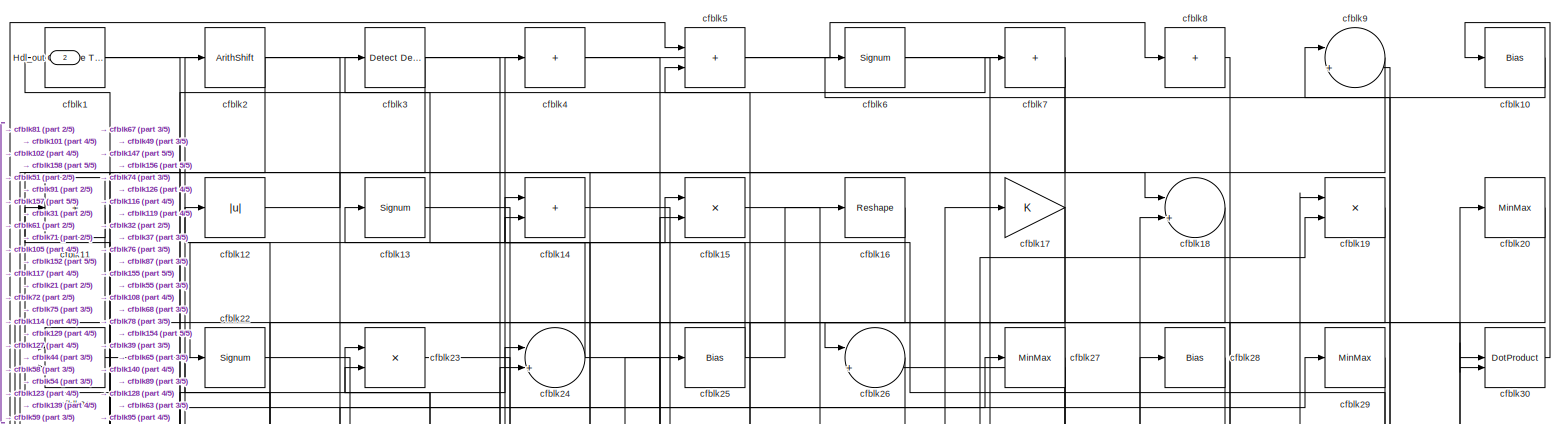
[diagram: root canvas - part 1/5, full width, top band]
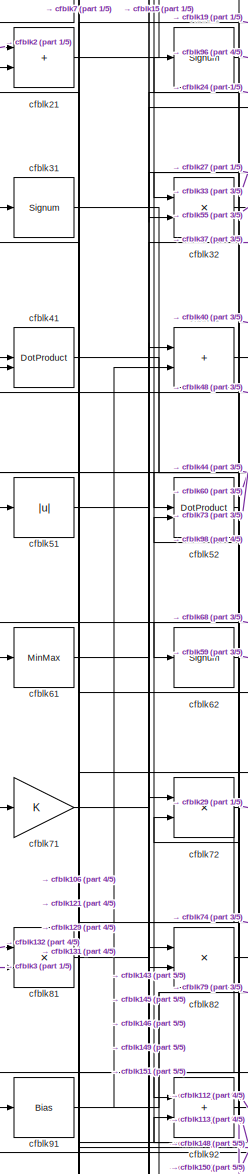
[diagram: root canvas - part 2/5, middle left region]
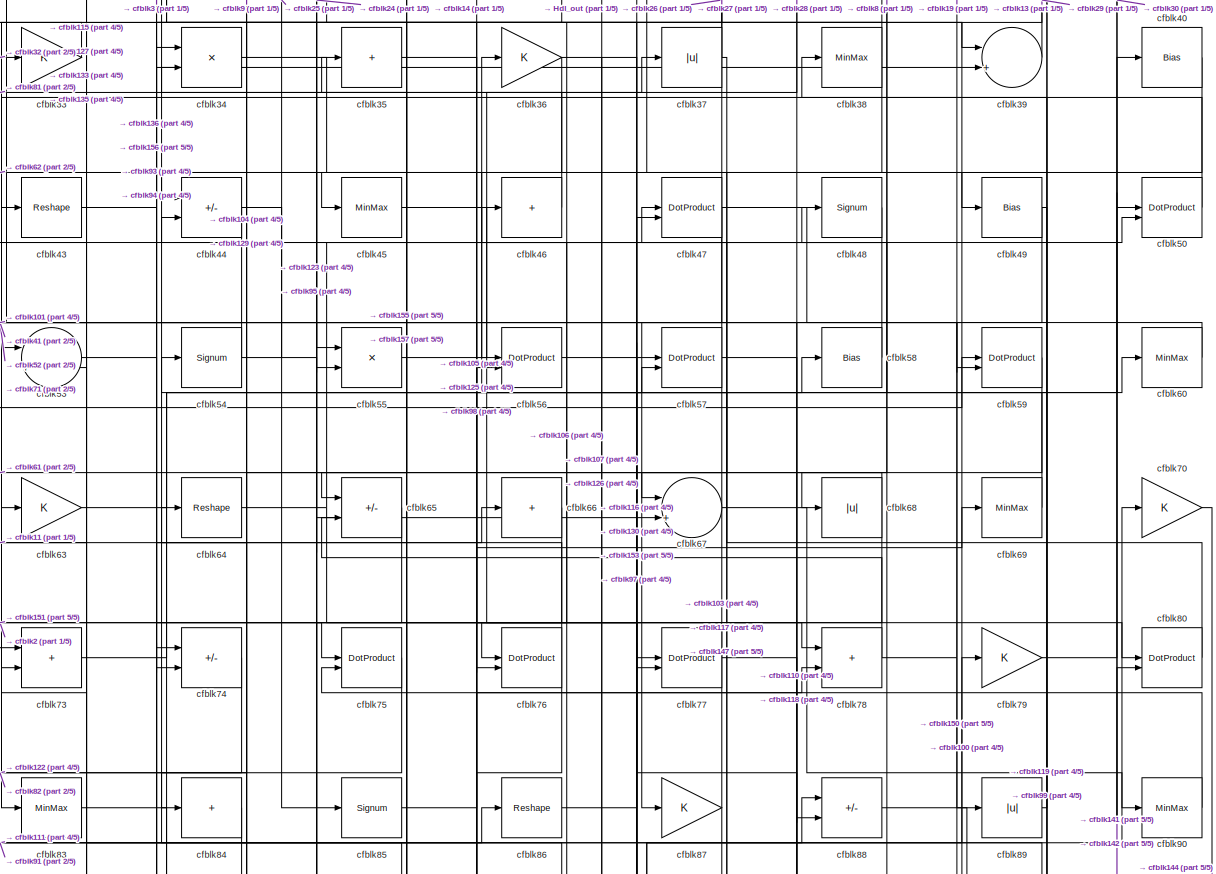
[diagram: root canvas - part 3/5, full width, middle band]
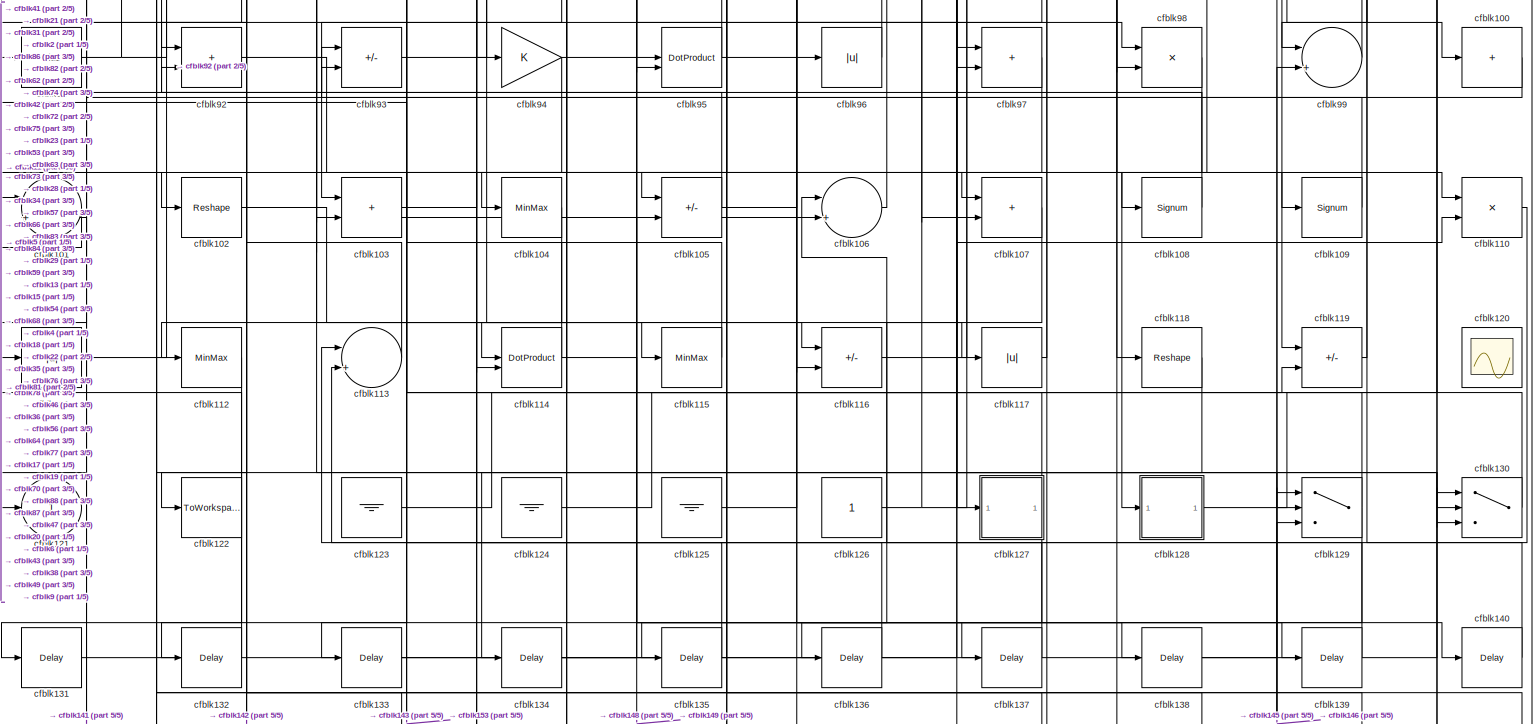
[diagram: root canvas - part 4/5, full width, bottom band]
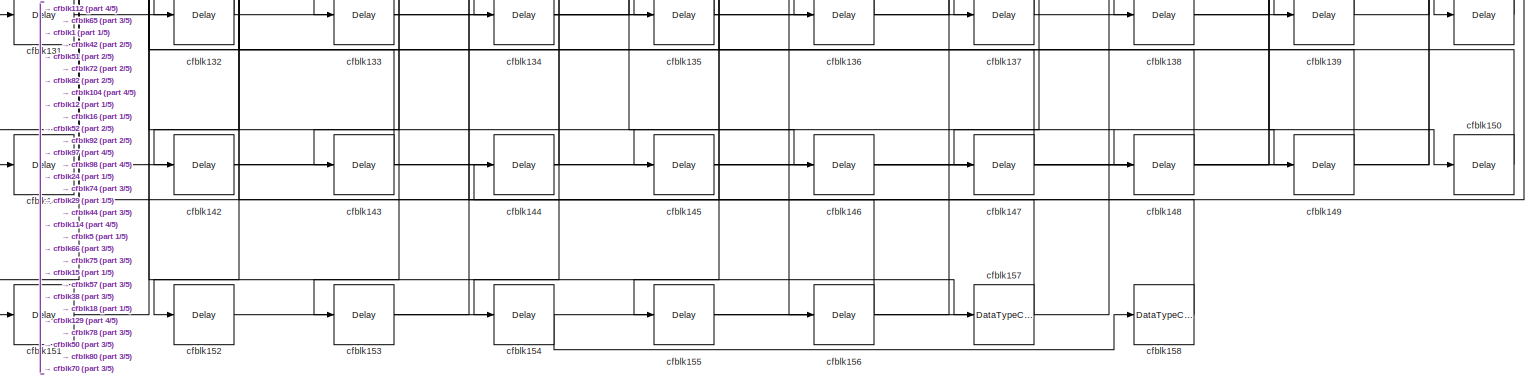
[diagram: root canvas - part 5/5, full width, bottom band]
MODEL slx_b74a335cdbc1
KIND model
CONFIG AbsTol = auto
CONFIG EnableMultiTasking = off
CONFIG FixedStep = auto
CONFIG MaxStep = auto
CONFIG MinStep = auto
CONFIG RelTol = 1e-3
CONFIG SampleTimeConstraint = Unconstrained
CONFIG SolverName = VariableStepAuto
CONFIG StartTime = 0.0
CONFIG StopTime = 10.0
BLOCK [Outport] Hdl_out
  OutDataTypeStr = uint8
  Port = 2
BLOCK [Reference] cfblk1  REF=hdlsllib/Logic and Bit
Operations/Compare
To Zero
  SourceBlock = hdlsllib/Logic and Bit\nOperations/Compare\nTo Zero
  SourceType = Compare To Zero
BLOCK [Bias] cfblk10
  Bias = 0.0
  SaturateOnIntegerOverflow = off
BLOCK [Sum] cfblk100
  IconShape = rectangular
  Inputs = +
  OutDataTypeStr = uint8
BLOCK [Sum] cfblk101
  Inputs = |++
  OutDataTypeStr = uint8
BLOCK [Reshape] cfblk102
BLOCK [Sum] cfblk103
  IconShape = rectangular
  OutDataTypeStr = uint8
BLOCK [MinMax] cfblk104
  OutDataTypeStr = uint8
BLOCK [Sum] cfblk105
  IconShape = rectangular
  Inputs = +-
  OutDataTypeStr = uint8
BLOCK [Sum] cfblk106
  Inputs = |++
  OutDataTypeStr = uint8
BLOCK [Sum] cfblk107
  IconShape = rectangular
  OutDataTypeStr = uint8
BLOCK [Signum] cfblk108
BLOCK [Signum] cfblk109
BLOCK [Sum] cfblk11
  IconShape = rectangular
  Inputs = +
  OutDataTypeStr = uint8
BLOCK [Product] cfblk110
  Inputs = */
  OutDataTypeStr = uint8
  RndMeth = Zero
  SaturateOnIntegerOverflow = on
BLOCK [Abs] cfblk111
  OutDataTypeStr = uint8
  SaturateOnIntegerOverflow = off
BLOCK [MinMax] cfblk112
  OutDataTypeStr = uint8
BLOCK [Sum] cfblk113
  Inputs = |++
  OutDataTypeStr = uint8
BLOCK [DotProduct] cfblk114
  OutDataTypeStr = uint8
BLOCK [MinMax] cfblk115
  OutDataTypeStr = uint8
BLOCK [Sum] cfblk116
  IconShape = rectangular
  Inputs = +-
  OutDataTypeStr = uint8
BLOCK [Abs] cfblk117
  OutDataTypeStr = uint8
  SaturateOnIntegerOverflow = off
BLOCK [Reshape] cfblk118
BLOCK [Sum] cfblk119
  IconShape = rectangular
  Inputs = +-
  OutDataTypeStr = uint8
BLOCK [Abs] cfblk12
  OutDataTypeStr = uint8
  SaturateOnIntegerOverflow = off
BLOCK [Scope] cfblk120
  Floating = on
  NumInputPorts = 1
  ScopeSpecificationString = Simulink.scopes.TimeScopeBlockCfg('CurrentConfiguration', extmgr.ConfigurationSet(extmgr.Configuration('Core','General UI',true,'FigureColor',[0.156862745098039 0.156862745098039 0.156862745098039]),extmgr.Configuration('Core','Source UI',true),extmgr.Configuration('Sources','WiredSimulink',true,'DataLoggingVariableName','ScopeData1','DataLoggingSaveFormat','StructureWithTime','DataLoggingLimitDat...<+2713ch>
BLOCK [Outport] cfblk121
  OutDataTypeStr = uint8
  VectorParamsAs1DForOutWhenUnconnected = off
BLOCK [ToWorkspace] cfblk122
  MaxDataPoints = inf
  SampleTime = -1
  SaveFormat = Timeseries
  VariableName = simout
BLOCK [Ground] cfblk123
BLOCK [Ground] cfblk124
BLOCK [Ground] cfblk125
BLOCK [Constant] cfblk126
  OutDataTypeStr = uint8
  SampleTime = -1
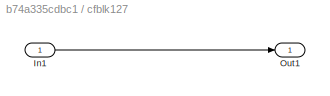
BLOCK [SubSystem] cfblk127
  LibrarySourceBlock = hdlsllib/Ports &\nSubsystems/Subsystem
BLOCK [Inport] cfblk127/In1
BLOCK [Outport] cfblk127/Out1
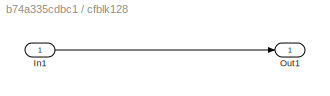
BLOCK [SubSystem] cfblk128
  LibrarySourceBlock = hdlsllib/Ports &\nSubsystems/Subsystem
BLOCK [Inport] cfblk128/In1
BLOCK [Outport] cfblk128/Out1
BLOCK [Switch] cfblk129
  InputSameDT = off
  OutDataTypeStr = uint8
  SaturateOnIntegerOverflow = off
BLOCK [Signum] cfblk13
BLOCK [Switch] cfblk130
  InputSameDT = off
  OutDataTypeStr = uint8
  SaturateOnIntegerOverflow = off
BLOCK [Delay] cfblk131
  InputPortMap = u0
  SampleTime = 1
BLOCK [Delay] cfblk132
  InputPortMap = u0
  SampleTime = 1
BLOCK [Delay] cfblk133
  InputPortMap = u0
  SampleTime = 1
BLOCK [Delay] cfblk134
  InputPortMap = u0
  SampleTime = 1
BLOCK [Delay] cfblk135
  InputPortMap = u0
  SampleTime = 1
BLOCK [Delay] cfblk136
  InputPortMap = u0
  SampleTime = 1
BLOCK [Delay] cfblk137
  InputPortMap = u0
  SampleTime = 1
BLOCK [Delay] cfblk138
  InputPortMap = u0
  SampleTime = 1
BLOCK [Delay] cfblk139
  InputPortMap = u0
  SampleTime = 1
BLOCK [Sum] cfblk14
  IconShape = rectangular
  OutDataTypeStr = uint8
BLOCK [Delay] cfblk140
  InputPortMap = u0
  SampleTime = 1
BLOCK [Delay] cfblk141
  InputPortMap = u0
  SampleTime = 1
BLOCK [Delay] cfblk142
  InputPortMap = u0
  SampleTime = 1
BLOCK [Delay] cfblk143
  InputPortMap = u0
  SampleTime = 1
BLOCK [Delay] cfblk144
  InputPortMap = u0
  SampleTime = 1
BLOCK [Delay] cfblk145
  InputPortMap = u0
  SampleTime = 1
BLOCK [Delay] cfblk146
  InputPortMap = u0
  SampleTime = 1
BLOCK [Delay] cfblk147
  InputPortMap = u0
  SampleTime = 1
BLOCK [Delay] cfblk148
  InputPortMap = u0
  SampleTime = 1
BLOCK [Delay] cfblk149
  InputPortMap = u0
  SampleTime = 1
BLOCK [Product] cfblk15
  Inputs = */
  OutDataTypeStr = uint8
  RndMeth = Zero
  SaturateOnIntegerOverflow = on
BLOCK [Delay] cfblk150
  InputPortMap = u0
  SampleTime = 1
BLOCK [Delay] cfblk151
  InputPortMap = u0
  SampleTime = 1
BLOCK [Delay] cfblk152
  InputPortMap = u0
  SampleTime = 1
BLOCK [Delay] cfblk153
  InputPortMap = u0
  SampleTime = 1
BLOCK [Delay] cfblk154
  InputPortMap = u0
  SampleTime = 1
BLOCK [Delay] cfblk155
  InputPortMap = u0
  SampleTime = 1
BLOCK [Delay] cfblk156
  InputPortMap = u0
  SampleTime = 1
BLOCK [DataTypeConversion] cfblk157
  OutDataTypeStr = uint8
  RndMeth = Floor
  SaturateOnIntegerOverflow = off
BLOCK [DataTypeConversion] cfblk158
  OutDataTypeStr = uint8
  RndMeth = Floor
  SaturateOnIntegerOverflow = off
BLOCK [Reshape] cfblk16
BLOCK [Gain] cfblk17
  OutDataTypeStr = uint8
BLOCK [Sum] cfblk18
  Inputs = |++
  OutDataTypeStr = uint8
BLOCK [Product] cfblk19
  Inputs = */
  OutDataTypeStr = uint8
  RndMeth = Zero
  SaturateOnIntegerOverflow = on
BLOCK [ArithShift] cfblk2
  BitShiftNumber = 8
  InputPortMap = u0
BLOCK [MinMax] cfblk20
  OutDataTypeStr = uint8
BLOCK [Sum] cfblk21
  IconShape = rectangular
  OutDataTypeStr = uint8
BLOCK [Signum] cfblk22
BLOCK [Product] cfblk23
  Inputs = */
  OutDataTypeStr = uint8
  RndMeth = Zero
  SaturateOnIntegerOverflow = on
BLOCK [Sum] cfblk24
  Inputs = |++
  OutDataTypeStr = uint8
BLOCK [Bias] cfblk25
  Bias = 0.0
  SaturateOnIntegerOverflow = off
BLOCK [Sum] cfblk26
  Inputs = |++
  OutDataTypeStr = uint8
BLOCK [MinMax] cfblk27
  OutDataTypeStr = uint8
BLOCK [Bias] cfblk28
  Bias = 0.0
  SaturateOnIntegerOverflow = off
BLOCK [MinMax] cfblk29
  OutDataTypeStr = uint8
BLOCK [Reference] cfblk3  REF=simulink/Logic and Bit
Operations/Detect
Decrease
  LibrarySourceBlock = hdlsllib/Logic and Bit\nOperations/Detect\nDecrease
  SourceBlock = simulink/Logic and Bit\nOperations/Detect\nDecrease
  SourceType = Detect Decrease
BLOCK [DotProduct] cfblk30
  OutDataTypeStr = uint8
BLOCK [Signum] cfblk31
BLOCK [Product] cfblk32
  Inputs = */
  OutDataTypeStr = uint8
  RndMeth = Zero
  SaturateOnIntegerOverflow = on
BLOCK [Gain] cfblk33
  OutDataTypeStr = uint8
BLOCK [Product] cfblk34
  Inputs = */
  OutDataTypeStr = uint8
  RndMeth = Zero
  SaturateOnIntegerOverflow = on
BLOCK [Sum] cfblk35
  IconShape = rectangular
  Inputs = +
  OutDataTypeStr = uint8
BLOCK [Gain] cfblk36
  OutDataTypeStr = uint8
BLOCK [Abs] cfblk37
  OutDataTypeStr = uint8
  SaturateOnIntegerOverflow = off
BLOCK [MinMax] cfblk38
  OutDataTypeStr = uint8
BLOCK [Sum] cfblk39
  Inputs = |++
  OutDataTypeStr = uint8
BLOCK [Sum] cfblk4
  IconShape = rectangular
  Inputs = +
  OutDataTypeStr = uint8
BLOCK [Bias] cfblk40
  Bias = 0.0
  SaturateOnIntegerOverflow = off
BLOCK [DotProduct] cfblk41
  OutDataTypeStr = uint8
BLOCK [Sum] cfblk42
  IconShape = rectangular
  OutDataTypeStr = uint8
BLOCK [Reshape] cfblk43
BLOCK [Sum] cfblk44
  IconShape = rectangular
  Inputs = +-
  OutDataTypeStr = uint8
BLOCK [MinMax] cfblk45
  OutDataTypeStr = uint8
BLOCK [Sum] cfblk46
  IconShape = rectangular
  Inputs = +
  OutDataTypeStr = uint8
BLOCK [DotProduct] cfblk47
  OutDataTypeStr = uint8
BLOCK [Signum] cfblk48
BLOCK [Bias] cfblk49
  Bias = 0.0
  SaturateOnIntegerOverflow = off
BLOCK [Sum] cfblk5
  IconShape = rectangular
  OutDataTypeStr = uint8
BLOCK [DotProduct] cfblk50
  OutDataTypeStr = uint8
BLOCK [Abs] cfblk51
  OutDataTypeStr = uint8
  SaturateOnIntegerOverflow = off
BLOCK [DotProduct] cfblk52
  OutDataTypeStr = uint8
BLOCK [Sum] cfblk53
  Inputs = |++
  OutDataTypeStr = uint8
BLOCK [Signum] cfblk54
BLOCK [Product] cfblk55
  Inputs = */
  OutDataTypeStr = uint8
  RndMeth = Zero
  SaturateOnIntegerOverflow = on
BLOCK [DotProduct] cfblk56
  OutDataTypeStr = uint8
BLOCK [DotProduct] cfblk57
  OutDataTypeStr = uint8
BLOCK [Bias] cfblk58
  Bias = 0.0
  SaturateOnIntegerOverflow = off
BLOCK [DotProduct] cfblk59
  OutDataTypeStr = uint8
BLOCK [Signum] cfblk6
BLOCK [MinMax] cfblk60
  OutDataTypeStr = uint8
BLOCK [MinMax] cfblk61
  OutDataTypeStr = uint8
BLOCK [Signum] cfblk62
BLOCK [Gain] cfblk63
  OutDataTypeStr = uint8
BLOCK [Reshape] cfblk64
BLOCK [Sum] cfblk65
  IconShape = rectangular
  Inputs = +-
  OutDataTypeStr = uint8
BLOCK [Sum] cfblk66
  IconShape = rectangular
  Inputs = +
  OutDataTypeStr = uint8
BLOCK [Sum] cfblk67
  Inputs = |++
  OutDataTypeStr = uint8
BLOCK [Abs] cfblk68
  OutDataTypeStr = uint8
  SaturateOnIntegerOverflow = off
BLOCK [MinMax] cfblk69
  OutDataTypeStr = uint8
BLOCK [Sum] cfblk7
  IconShape = rectangular
  Inputs = +
  OutDataTypeStr = uint8
BLOCK [Gain] cfblk70
  OutDataTypeStr = uint8
BLOCK [Gain] cfblk71
  OutDataTypeStr = uint8
BLOCK [Product] cfblk72
  Inputs = */
  OutDataTypeStr = uint8
  RndMeth = Zero
  SaturateOnIntegerOverflow = on
BLOCK [Sum] cfblk73
  IconShape = rectangular
  OutDataTypeStr = uint8
BLOCK [Sum] cfblk74
  IconShape = rectangular
  Inputs = +-
  OutDataTypeStr = uint8
BLOCK [DotProduct] cfblk75
  OutDataTypeStr = uint8
BLOCK [DotProduct] cfblk76
  OutDataTypeStr = uint8
BLOCK [DotProduct] cfblk77
  OutDataTypeStr = uint8
BLOCK [Sum] cfblk78
  IconShape = rectangular
  OutDataTypeStr = uint8
BLOCK [Gain] cfblk79
  OutDataTypeStr = uint8
BLOCK [Sum] cfblk8
  IconShape = rectangular
  Inputs = +
  OutDataTypeStr = uint8
BLOCK [DotProduct] cfblk80
  OutDataTypeStr = uint8
BLOCK [Product] cfblk81
  Inputs = */
  OutDataTypeStr = uint8
  RndMeth = Zero
  SaturateOnIntegerOverflow = on
BLOCK [Product] cfblk82
  Inputs = */
  OutDataTypeStr = uint8
  RndMeth = Zero
  SaturateOnIntegerOverflow = on
BLOCK [MinMax] cfblk83
  OutDataTypeStr = uint8
BLOCK [Sum] cfblk84
  IconShape = rectangular
  Inputs = +
  OutDataTypeStr = uint8
BLOCK [Signum] cfblk85
BLOCK [Reshape] cfblk86
BLOCK [Gain] cfblk87
  OutDataTypeStr = uint8
BLOCK [Sum] cfblk88
  IconShape = rectangular
  Inputs = +-
  OutDataTypeStr = uint8
BLOCK [Abs] cfblk89
  OutDataTypeStr = uint8
  SaturateOnIntegerOverflow = off
BLOCK [Sum] cfblk9
  Inputs = |++
  OutDataTypeStr = uint8
BLOCK [MinMax] cfblk90
  OutDataTypeStr = uint8
BLOCK [Bias] cfblk91
  Bias = 0.0
  SaturateOnIntegerOverflow = off
BLOCK [Sum] cfblk92
  IconShape = rectangular
  OutDataTypeStr = uint8
BLOCK [Sum] cfblk93
  IconShape = rectangular
  Inputs = +-
  OutDataTypeStr = uint8
BLOCK [Gain] cfblk94
  OutDataTypeStr = uint8
BLOCK [DotProduct] cfblk95
  OutDataTypeStr = uint8
BLOCK [Abs] cfblk96
  OutDataTypeStr = uint8
  SaturateOnIntegerOverflow = off
BLOCK [Sum] cfblk97
  IconShape = rectangular
  OutDataTypeStr = uint8
BLOCK [Product] cfblk98
  Inputs = */
  OutDataTypeStr = uint8
  RndMeth = Zero
  SaturateOnIntegerOverflow = on
BLOCK [Sum] cfblk99
  Inputs = |++
  OutDataTypeStr = uint8
LINE cfblk100:1 -> cfblk93:2
LINE cfblk101:1 -> cfblk5:1
LINE cfblk102:1 -> cfblk115:1
LINE cfblk103:1 -> cfblk107:1
LINE cfblk104:1 -> cfblk142:1
NET cfblk105:1 -> cfblk2:1, cfblk78:2
LINE cfblk106:1 -> cfblk46:1
LINE cfblk107:1 -> cfblk136:1
NET cfblk108:1 -> cfblk21:2, cfblk93:1
LINE cfblk109:1 -> cfblk31:1
LINE cfblk10:1 -> cfblk6:1
LINE cfblk110:1 -> cfblk113:2
NET cfblk111:1 -> cfblk130:3, cfblk86:1
LINE cfblk112:1 -> cfblk141:1
LINE cfblk113:1 -> cfblk22:1
NET cfblk114:1 -> cfblk148:1, cfblk149:1, cfblk23:1
LINE cfblk115:1 -> cfblk63:1
NET cfblk116:1 -> cfblk19:2, cfblk70:1
LINE cfblk117:1 -> cfblk47:1
LINE cfblk118:1 -> cfblk134:1
LINE cfblk119:1 -> cfblk38:1
LINE cfblk11:1 -> cfblk102:1
NET cfblk123:1 -> cfblk15:2, cfblk77:1
LINE cfblk124:1 -> cfblk119:2
LINE cfblk125:1 -> cfblk56:2
NET cfblk126:1 -> cfblk110:2, cfblk17:1, cfblk88:1
LINE cfblk127/In1:1 -> cfblk127/Out1:1
NET cfblk127:1 -> cfblk132:1, cfblk53:2
LINE cfblk128/In1:1 -> cfblk128/Out1:1
LINE cfblk128:1 -> cfblk20:1
NET cfblk129:1 -> cfblk135:1, cfblk23:2, cfblk64:1
LINE cfblk12:1 -> cfblk18:1
LINE cfblk130:1 -> cfblk41:1
LINE cfblk131:1 -> cfblk105:2
LINE cfblk132:1 -> cfblk81:1
LINE cfblk133:1 -> cfblk47:2
LINE cfblk134:1 -> cfblk130:1
LINE cfblk135:1 -> cfblk73:2
LINE cfblk136:1 -> cfblk34:1
LINE cfblk137:1 -> cfblk113:1
LINE cfblk138:1 -> cfblk99:2
LINE cfblk139:1 -> cfblk106:1
LINE cfblk13:1 -> cfblk95:1
LINE cfblk140:1 -> cfblk9:2
LINE cfblk141:1 -> cfblk80:2
LINE cfblk142:1 -> cfblk50:1
LINE cfblk143:1 -> cfblk82:1
LINE cfblk144:1 -> cfblk44:2
LINE cfblk145:1 -> cfblk129:1
LINE cfblk146:1 -> cfblk129:3
LINE cfblk147:1 -> cfblk5:2
LINE cfblk148:1 -> cfblk52:2
LINE cfblk149:1 -> cfblk42:1
LINE cfblk14:1 -> cfblk49:1
LINE cfblk150:1 -> cfblk92:2
LINE cfblk151:1 -> cfblk72:1
LINE cfblk152:1 -> cfblk24:2
LINE cfblk153:1 -> cfblk57:1
LINE cfblk154:1 -> cfblk158:1
LINE cfblk155:1 -> cfblk18:2
LINE cfblk156:1 -> cfblk74:1
NET cfblk157:1 -> cfblk12:1, cfblk75:2
LINE cfblk158:1 -> cfblk1:1
LINE cfblk15:1 -> cfblk156:1
LINE cfblk16:1 -> cfblk152:1
LINE cfblk17:1 -> cfblk26:1
LINE cfblk18:1 -> cfblk105:1
LINE cfblk19:1 -> cfblk51:1
LINE cfblk1:1 -> cfblk157:1
LINE cfblk20:1 -> cfblk108:1
LINE cfblk21:1 -> cfblk15:1
LINE cfblk22:1 -> cfblk96:1
LINE cfblk23:1 -> cfblk127:1
NET cfblk24:1 -> cfblk3:1, cfblk59:2, cfblk67:2
NET cfblk25:1 -> cfblk14:2, cfblk16:1
LINE cfblk26:1 -> cfblk74:2
NET cfblk27:1 -> cfblk32:2, cfblk76:1
NET cfblk28:1 -> cfblk114:2, cfblk76:2
NET cfblk29:1 -> cfblk114:1, cfblk154:1, cfblk65:1
NET cfblk2:1 -> cfblk117:1, cfblk21:1, cfblk30:2, cfblk75:1
LINE cfblk30:1 -> cfblk10:1
NET cfblk31:1 -> cfblk27:1, cfblk98:2
LINE cfblk32:1 -> cfblk55:1
LINE cfblk33:1 -> cfblk32:1
LINE cfblk34:1 -> cfblk56:1
LINE cfblk35:1 -> cfblk98:1
NET cfblk36:1 -> cfblk107:2, cfblk84:1, cfblk88:2
NET cfblk37:1 -> cfblk26:2, cfblk67:1
NET cfblk38:1 -> cfblk147:1, cfblk83:1
LINE cfblk39:1 -> cfblk13:1
NET cfblk3:1 -> cfblk39:1, cfblk81:2
LINE cfblk40:1 -> cfblk62:1
NET cfblk41:1 -> cfblk55:2, cfblk73:1
LINE cfblk42:1 -> cfblk109:1
NET cfblk43:1 -> cfblk39:2, cfblk94:1
NET cfblk44:1 -> cfblk71:1, cfblk85:1
LINE cfblk45:1 -> cfblk80:1
LINE cfblk46:1 -> cfblk34:2
NET cfblk47:1 -> cfblk101:2, cfblk89:1
LINE cfblk48:1 -> cfblk41:2
NET cfblk49:1 -> cfblk87:1, cfblk99:1
LINE cfblk4:1 -> cfblk139:1
NET cfblk50:1 -> cfblk33:1, cfblk45:1
NET cfblk51:1 -> cfblk145:1, cfblk146:1
LINE cfblk52:1 -> cfblk92:1
NET cfblk53:1 -> cfblk133:1, cfblk77:2
NET cfblk54:1 -> cfblk25:1, cfblk53:1, cfblk97:2
NET cfblk55:1 -> cfblk28:1, cfblk78:1
LINE cfblk56:1 -> cfblk130:2
LINE cfblk57:1 -> cfblk110:1
LINE cfblk58:1 -> cfblk14:1
LINE cfblk59:1 -> cfblk104:1
LINE cfblk5:1 -> cfblk8:1
LINE cfblk60:1 -> cfblk52:1
LINE cfblk61:1 -> cfblk7:1
NET cfblk62:1 -> cfblk112:1, cfblk59:1
LINE cfblk63:1 -> cfblk30:1
NET cfblk64:1 -> cfblk50:2, cfblk97:1
LINE cfblk65:1 -> cfblk151:1
LINE cfblk66:1 -> cfblk155:1
LINE cfblk67:1 -> cfblk90:1
NET cfblk68:1 -> cfblk61:1, cfblk95:2
NET cfblk69:1 -> cfblk36:1, cfblk48:1
LINE cfblk6:1 -> cfblk119:1
LINE cfblk70:1 -> cfblk144:1
LINE cfblk71:1 -> cfblk24:1
NET cfblk72:1 -> cfblk121:1, cfblk129:2, cfblk29:1
LINE cfblk73:1 -> cfblk60:1
NET cfblk74:1 -> cfblk122:1, cfblk82:2
LINE cfblk75:1 -> cfblk103:2
NET cfblk76:1 -> cfblk116:2, cfblk11:1
LINE cfblk77:1 -> cfblk118:1
NET cfblk78:1 -> cfblk150:1, cfblk19:1, cfblk65:2
LINE cfblk79:1 -> cfblk40:1
LINE cfblk7:1 -> cfblk91:1
LINE cfblk80:1 -> cfblk54:1
LINE cfblk81:1 -> cfblk37:1
NET cfblk82:1 -> cfblk106:2, cfblk131:1
LINE cfblk83:1 -> cfblk116:1
LINE cfblk84:1 -> cfblk111:1
LINE cfblk85:1 -> cfblk69:1
LINE cfblk86:1 -> cfblk58:1
NET cfblk87:1 -> Hdl_out:1, cfblk103:1
LINE cfblk88:1 -> cfblk100:1
LINE cfblk89:1 -> cfblk9:1
LINE cfblk8:1 -> cfblk68:1
LINE cfblk90:1 -> cfblk35:1
NET cfblk91:1 -> cfblk42:2, cfblk79:1
LINE cfblk92:1 -> cfblk128:1
NET cfblk93:1 -> cfblk57:2, cfblk66:1
NET cfblk94:1 -> cfblk101:1, cfblk137:1, cfblk138:1
NET cfblk95:1 -> cfblk140:1, cfblk4:1
LINE cfblk96:1 -> cfblk72:2
LINE cfblk97:1 -> cfblk153:1
LINE cfblk98:1 -> cfblk143:1
LINE cfblk99:1 -> cfblk43:1
LINE cfblk9:1 -> cfblk44:1
note: NET lines group one-source signal fan-out (src -> all destinations, sorted); 1:1 wires keep LINE
